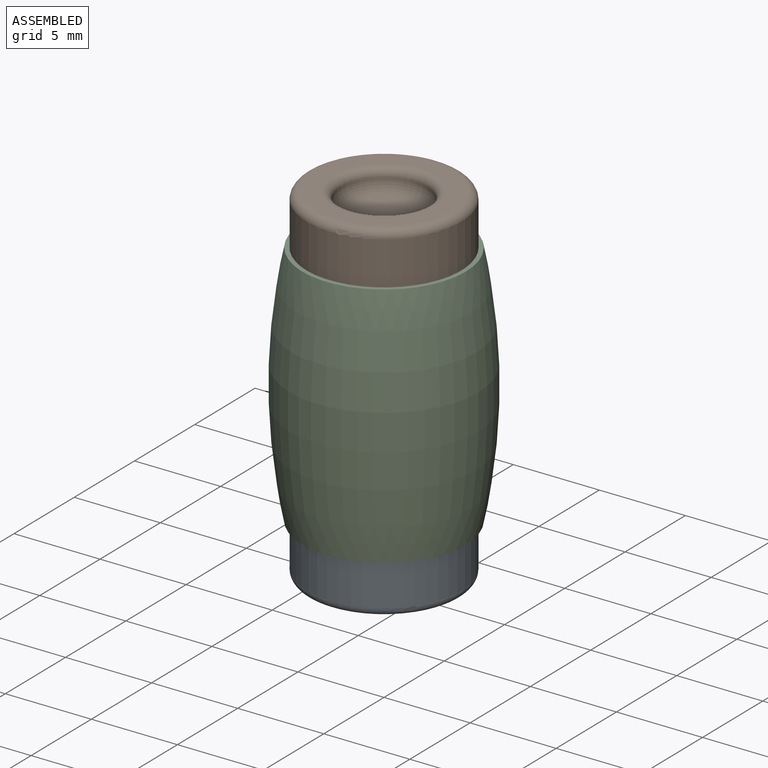
[diagram: assembled view]
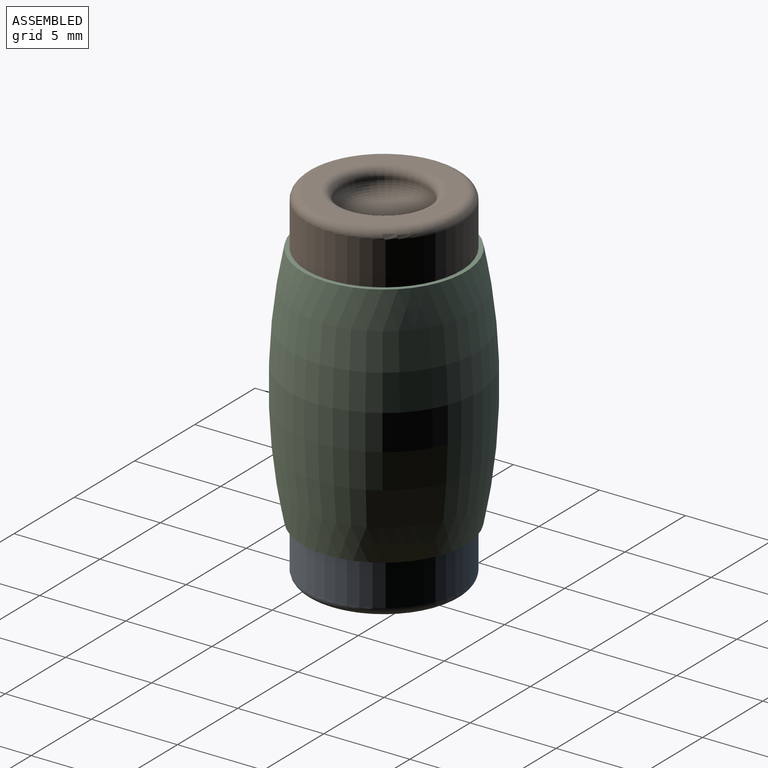
[diagram: assembled view, second angle]
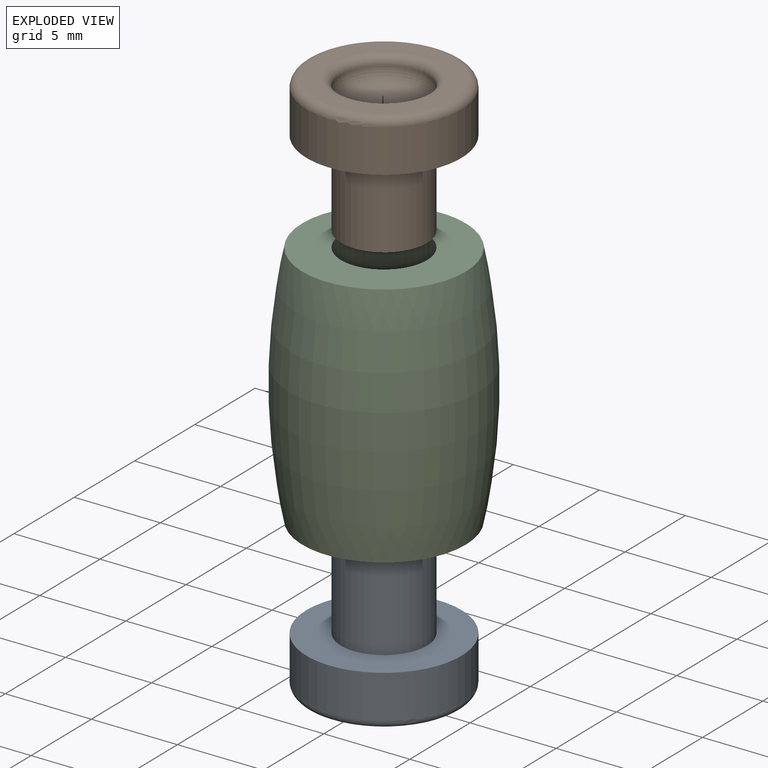
[diagram: exploded view]
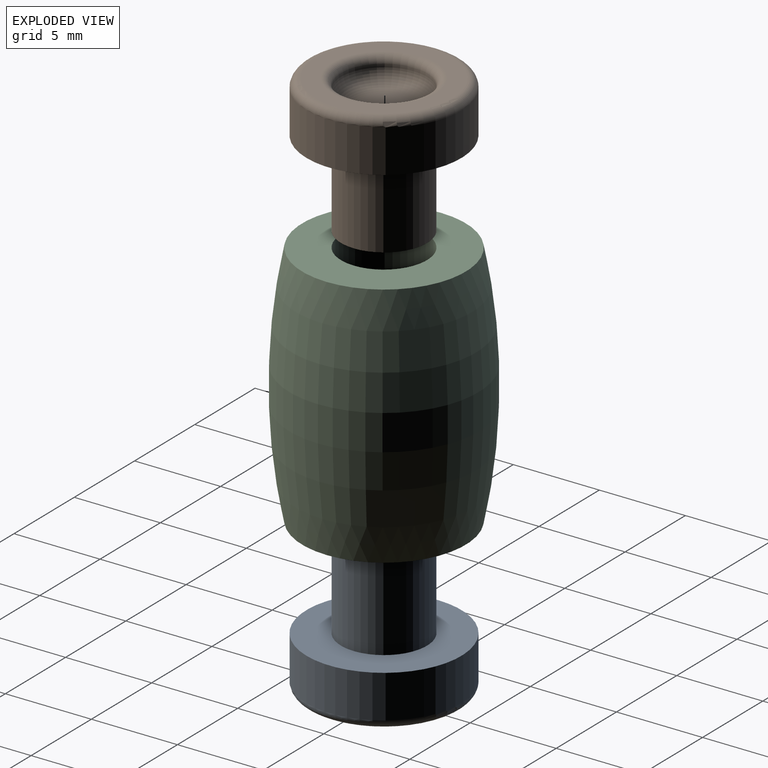
[diagram: exploded view, second angle]
ASSEMBLY  parts=3 mates=2
PART A: 9 faces, bbox 9.7x9.7x8.2 mm
  f0: plane 3x3mm, normal (0,0,-1), area 7.1mm2, adj f8
  f1: plane 5x5mm, normal (0,0,1), area 19.6mm2, adj f2
  f2: cylinder r=2.5mm len=5mm, axis (0,0,-1), area 78.5mm2, adj f1,f3
  f3: plane 9x9mm, normal (0,0,1), area 44mm2, adj f2,f4
  f4: cylinder r=4.5mm len=9mm, axis (0,0,-1), area 70.7mm2, adj f3,f6
  f5: plane 8x8mm, normal (0,0,-1), area 22mm2, adj f6,f7
  f6: torus R=4mm, axis (0,0,-1), area 21.3mm2, adj f4,f5
  f7: torus R=3mm, axis (0,0,-1), area 13.2mm2, adj f5,f8
  f8: torus R=1.5mm, axis (0,0,-1), area 21.1mm2, adj f0,f7
PART B: same geometry as A
PART C: 4 faces, bbox 11x11x14.3 mm
  f0: cylinder r=2.5mm len=14.34mm, axis (0,0,-1), area 225.3mm2, adj f1,f3
  f1: plane 9.5x9.5mm, normal (0,0,1), area 51.2mm2, adj f0,f2
  f2: revolved ~14.34x11mm, area 476.4mm2, adj f1,f3
  f3: plane 9.5x9.5mm, normal (0,0,-1), area 51.2mm2, adj f0,f2
PLACE A t=(0,0,-10.17)mm
PLACE B rot(axis=(1,0,0),180deg) t=(0,0,10.17)mm
PLACE C t=(0,0,-7.17)mm
MATE fastened A.f2 <-> C.f0  axis (0,0,1) through (0,0,-7.17)mm
MATE fastened B.f2 <-> C.f0  axis (0,0,-1) through (0,0,7.17)mm
